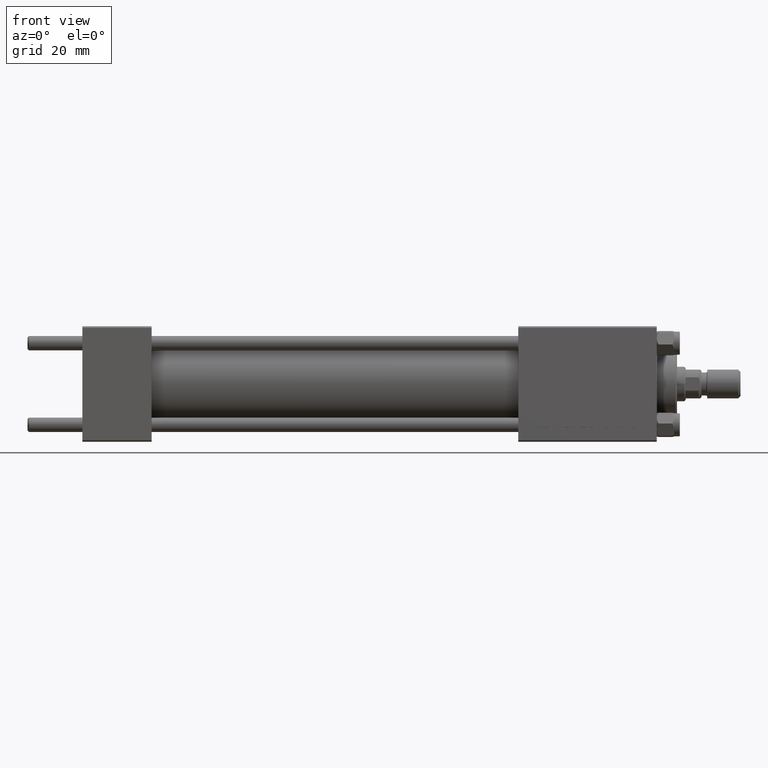
[diagram: clean part render]
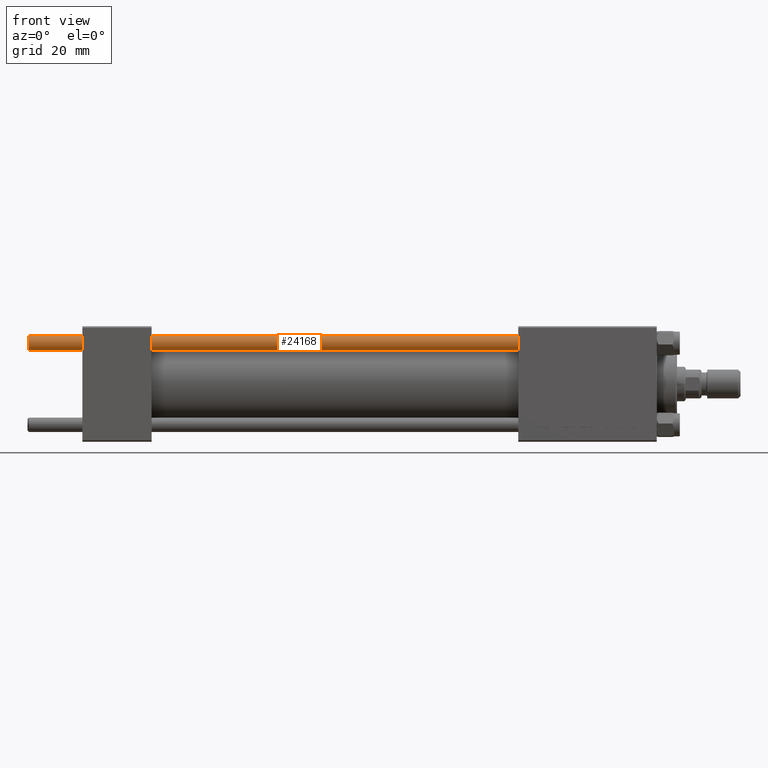
[diagram: same view with one face highlighted and labeled with its STEP entity id]
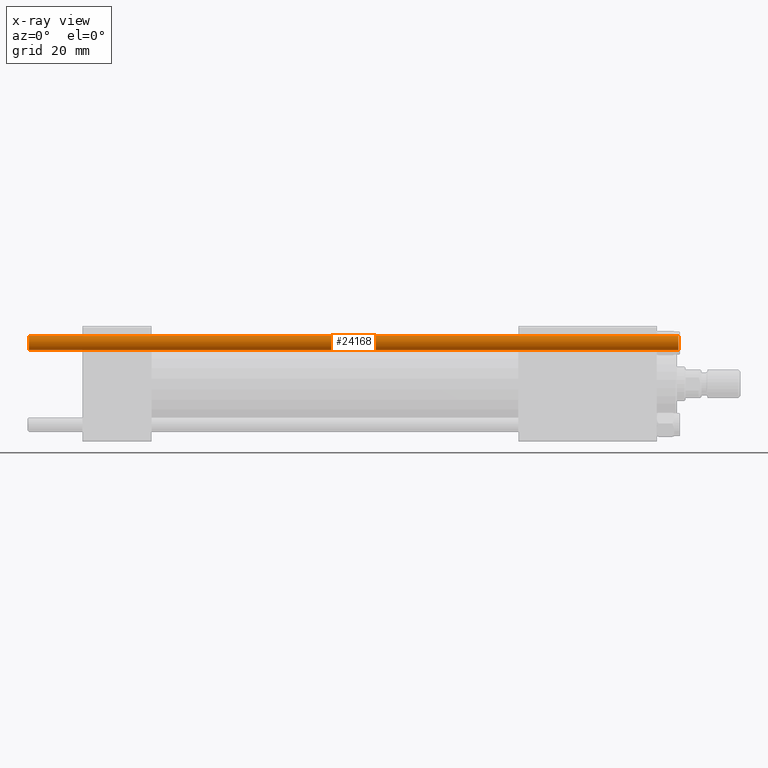
[diagram: x-ray of the same camera — body ghosted, the highlighted face saturated]
A machine part, front view. The second image highlights one B-rep face of the part: STEP entity #24168.
The next image is the same camera in x-ray: the body ghosted, the highlighted face saturated — about 0% of this face is hidden behind the body in this view.
In plain terms, the highlighted cylindrical surface (edge-blend (fillet) strip) has radius 2.5 mm, axis along (1, -0, 0).
Its self-contained STEP definition (entity closure, byte-faithful):
#281 = DIRECTION ( 'NONE',  ( 0.000000000000000000, 0.000000000000000000, -1.000000000000000000 ) ) ;
#1475 = LINE ( 'NONE', #17009, #14996 ) ;
#5722 = EDGE_CURVE ( 'NONE', #48951, #38379, #8073, .T. ) ;
#5907 = DIRECTION ( 'NONE',  ( -1.000000000000000000, 0.000000000000000000, 0.000000000000000000 ) ) ;
#8073 = LINE ( 'NONE', #33871, #13851 ) ;
#8155 = CIRCLE ( 'NONE', #38263, 2.500000000000000000 ) ;
#9218 = CYLINDRICAL_SURFACE ( 'NONE', #21637, 2.500000000000000000 ) ;
#9721 = FACE_OUTER_BOUND ( 'NONE', #42776, .T. ) ;
#9854 = CIRCLE ( 'NONE', #22036, 2.500000000000000000 ) ;
#10038 = EDGE_CURVE ( 'NONE', #18705, #48951, #8155, .T. ) ;
#10856 = VERTEX_POINT ( 'NONE', #25519 ) ;
#13851 = VECTOR ( 'NONE', #47315, 1000.000000000000000 ) ;
#14996 = VECTOR ( 'NONE', #38763, 1000.000000000000000 ) ;
#15284 = CARTESIAN_POINT ( 'NONE',  ( 2.500000000000000000, 3.061616997868383141E-16, 225.5000000000000284 ) ) ;
#16728 = ORIENTED_EDGE ( 'NONE', *, *, #39477, .T. ) ;
#17009 = CARTESIAN_POINT ( 'NONE',  ( -2.500000000000000000, 0.000000000000000000, 226.0000000000000000 ) ) ;
#18705 = VERTEX_POINT ( 'NONE', #32804 ) ;
#19450 = EDGE_CURVE ( 'NONE', #18705, #10856, #1475, .T. ) ;
#19541 = ORIENTED_EDGE ( 'NONE', *, *, #19450, .F. ) ;
#21338 = CARTESIAN_POINT ( 'NONE',  ( 0.000000000000000000, 0.000000000000000000, 0.4999999999999726885 ) ) ;
#21637 = AXIS2_PLACEMENT_3D ( 'NONE', #33413, #40277, #5907 ) ;
#22036 = AXIS2_PLACEMENT_3D ( 'NONE', #21338, #36629, #25417 ) ;
#22158 = ORIENTED_EDGE ( 'NONE', *, *, #5722, .T. ) ;
#22262 = ORIENTED_EDGE ( 'NONE', *, *, #10038, .T. ) ;
#24168 = ADVANCED_FACE ( 'NONE', ( #9721 ), #9218, .T. ) ;
#25417 = DIRECTION ( 'NONE',  ( 1.000000000000000000, 0.000000000000000000, 0.000000000000000000 ) ) ;
#25519 = CARTESIAN_POINT ( 'NONE',  ( -2.500000000000000000, 0.000000000000000000, 0.4999999999999726885 ) ) ;
#32804 = CARTESIAN_POINT ( 'NONE',  ( -2.500000000000000000, 0.000000000000000000, 225.5000000000000284 ) ) ;
#33413 = CARTESIAN_POINT ( 'NONE',  ( 0.000000000000000000, 0.000000000000000000, 226.0000000000000000 ) ) ;
#33871 = CARTESIAN_POINT ( 'NONE',  ( 2.500000000000000000, 3.061616997868383141E-16, 226.0000000000000000 ) ) ;
#34407 = DIRECTION ( 'NONE',  ( 1.000000000000000000, 0.000000000000000000, 0.000000000000000000 ) ) ;
#36629 = DIRECTION ( 'NONE',  ( -0.000000000000000000, -0.000000000000000000, 1.000000000000000000 ) ) ;
#38234 = CARTESIAN_POINT ( 'NONE',  ( 0.000000000000000000, 0.000000000000000000, 225.5000000000000284 ) ) ;
#38263 = AXIS2_PLACEMENT_3D ( 'NONE', #38234, #281, #34407 ) ;
#38379 = VERTEX_POINT ( 'NONE', #42773 ) ;
#38763 = DIRECTION ( 'NONE',  ( -0.000000000000000000, -0.000000000000000000, -1.000000000000000000 ) ) ;
#39477 = EDGE_CURVE ( 'NONE', #38379, #10856, #9854, .T. ) ;
#40277 = DIRECTION ( 'NONE',  ( -0.000000000000000000, -0.000000000000000000, -1.000000000000000000 ) ) ;
#42773 = CARTESIAN_POINT ( 'NONE',  ( 2.500000000000000000, 3.061616997868383141E-16, 0.4999999999999726885 ) ) ;
#42776 = EDGE_LOOP ( 'NONE', ( #22262, #22158, #16728, #19541 ) ) ;
#47315 = DIRECTION ( 'NONE',  ( -0.000000000000000000, -0.000000000000000000, -1.000000000000000000 ) ) ;
#48951 = VERTEX_POINT ( 'NONE', #15284 ) ;